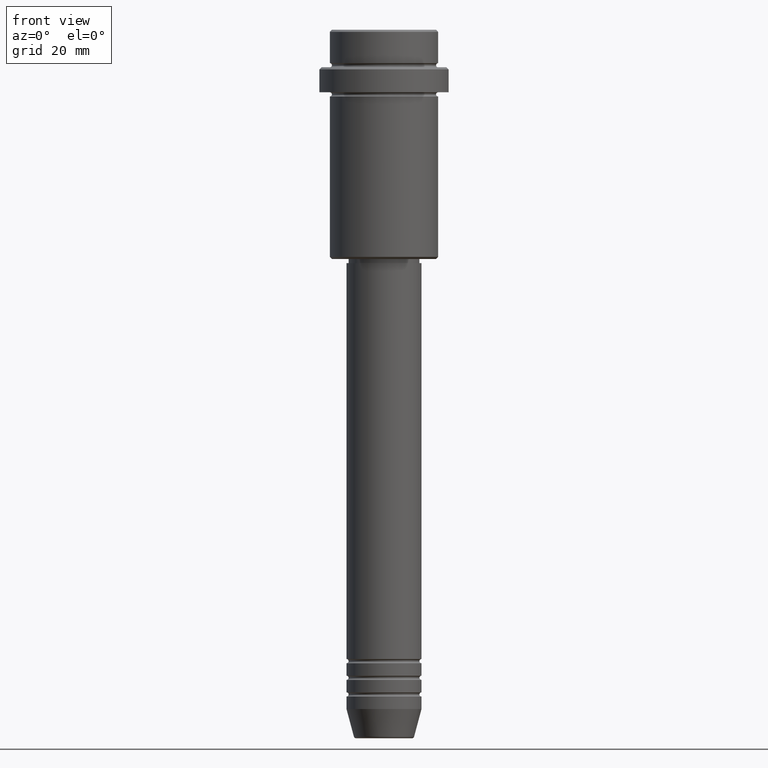
[diagram: clean part render]
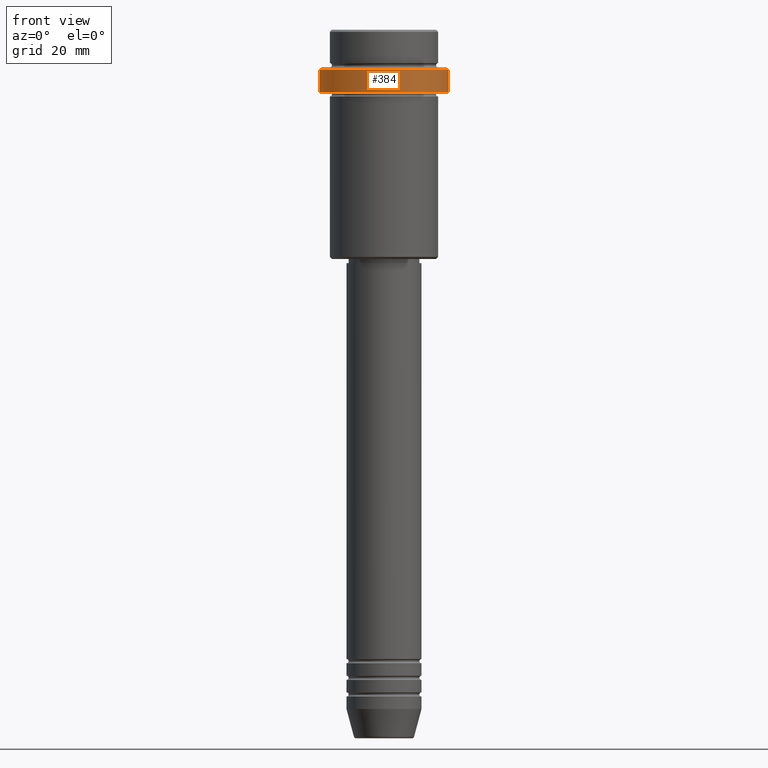
[diagram: same view with one face highlighted and labeled with its STEP entity id]
A machine part, front view. The second image highlights one B-rep face of the part: STEP entity #384.
In plain terms, the highlighted cylindrical surface (partial cylindrical patch) has radius 15.5 mm, axis along (-0, -0, 1).
Its self-contained STEP definition (entity closure, byte-faithful):
#34 = AXIS2_PLACEMENT_3D ( 'NONE', #1333, #219, #788 ) ;
#112 = VERTEX_POINT ( 'NONE', #707 ) ;
#118 = DIRECTION ( 'NONE',  ( -0.000000000000000000, -0.000000000000000000, 1.000000000000000000 ) ) ;
#145 = EDGE_CURVE ( 'NONE', #656, #112, #910, .T. ) ;
#219 = DIRECTION ( 'NONE',  ( -0.000000000000000000, -0.000000000000000000, 1.000000000000000000 ) ) ;
#286 = CIRCLE ( 'NONE', #577, 15.50000000000000000 ) ;
#327 = VECTOR ( 'NONE', #1021, 1000.000000000000000 ) ;
#330 = CARTESIAN_POINT ( 'NONE',  ( 0.000000000000000000, 0.000000000000000000, -14.99999999999998757 ) ) ;
#371 = AXIS2_PLACEMENT_3D ( 'NONE', #330, #1202, #764 ) ;
#384 = ADVANCED_FACE ( 'NONE', ( #1212 ), #557, .T. ) ;
#489 = CARTESIAN_POINT ( 'NONE',  ( 0.000000000000000000, 0.000000000000000000, -9.500000000000026645 ) ) ;
#539 = DIRECTION ( 'NONE',  ( 1.000000000000000000, 0.000000000000000000, 0.000000000000000000 ) ) ;
#551 = CIRCLE ( 'NONE', #371, 15.50000000000000000 ) ;
#557 = CYLINDRICAL_SURFACE ( 'NONE', #34, 15.50000000000000000 ) ;
#577 = AXIS2_PLACEMENT_3D ( 'NONE', #489, #1214, #539 ) ;
#606 = ORIENTED_EDGE ( 'NONE', *, *, #1351, .T. ) ;
#656 = VERTEX_POINT ( 'NONE', #1146 ) ;
#687 = CARTESIAN_POINT ( 'NONE',  ( -15.50000000000000000, 1.898202538678397557E-15, 0.000000000000000000 ) ) ;
#707 = CARTESIAN_POINT ( 'NONE',  ( -15.50000000000000000, 1.898202538678397557E-15, -9.500000000000026645 ) ) ;
#711 = CARTESIAN_POINT ( 'NONE',  ( 15.50000000000000000, 0.000000000000000000, -14.99999999999998757 ) ) ;
#719 = VECTOR ( 'NONE', #118, 1000.000000000000000 ) ;
#723 = VERTEX_POINT ( 'NONE', #711 ) ;
#747 = CARTESIAN_POINT ( 'NONE',  ( 15.50000000000000000, 0.000000000000000000, -9.500000000000026645 ) ) ;
#764 = DIRECTION ( 'NONE',  ( 1.000000000000000000, 0.000000000000000000, 0.000000000000000000 ) ) ;
#768 = EDGE_LOOP ( 'NONE', ( #985, #1232, #977, #606 ) ) ;
#788 = DIRECTION ( 'NONE',  ( 1.000000000000000000, 0.000000000000000000, 0.000000000000000000 ) ) ;
#813 = EDGE_CURVE ( 'NONE', #723, #1308, #1335, .T. ) ;
#887 = CARTESIAN_POINT ( 'NONE',  ( 15.50000000000000000, 0.000000000000000000, 0.000000000000000000 ) ) ;
#910 = LINE ( 'NONE', #687, #327 ) ;
#977 = ORIENTED_EDGE ( 'NONE', *, *, #813, .T. ) ;
#985 = ORIENTED_EDGE ( 'NONE', *, *, #145, .F. ) ;
#1020 = EDGE_CURVE ( 'NONE', #656, #723, #551, .T. ) ;
#1021 = DIRECTION ( 'NONE',  ( -0.000000000000000000, -0.000000000000000000, 1.000000000000000000 ) ) ;
#1146 = CARTESIAN_POINT ( 'NONE',  ( -15.50000000000000000, 1.898202538678397557E-15, -14.99999999999998757 ) ) ;
#1202 = DIRECTION ( 'NONE',  ( -0.000000000000000000, -0.000000000000000000, 1.000000000000000000 ) ) ;
#1212 = FACE_OUTER_BOUND ( 'NONE', #768, .T. ) ;
#1214 = DIRECTION ( 'NONE',  ( 0.000000000000000000, 0.000000000000000000, -1.000000000000000000 ) ) ;
#1232 = ORIENTED_EDGE ( 'NONE', *, *, #1020, .T. ) ;
#1308 = VERTEX_POINT ( 'NONE', #747 ) ;
#1333 = CARTESIAN_POINT ( 'NONE',  ( 0.000000000000000000, 0.000000000000000000, 0.000000000000000000 ) ) ;
#1335 = LINE ( 'NONE', #887, #719 ) ;
#1351 = EDGE_CURVE ( 'NONE', #1308, #112, #286, .T. ) ;